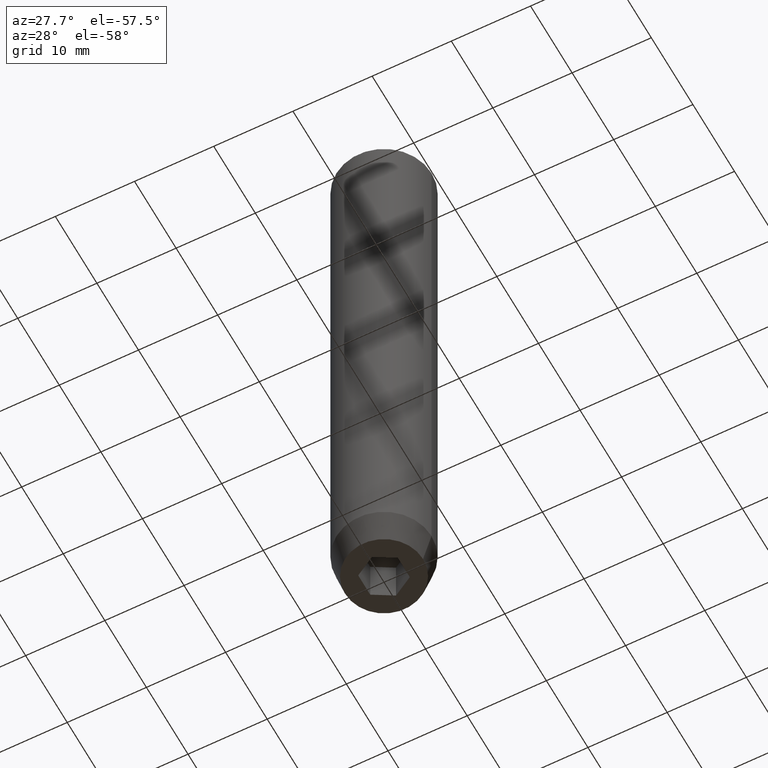
[diagram: clean part render]
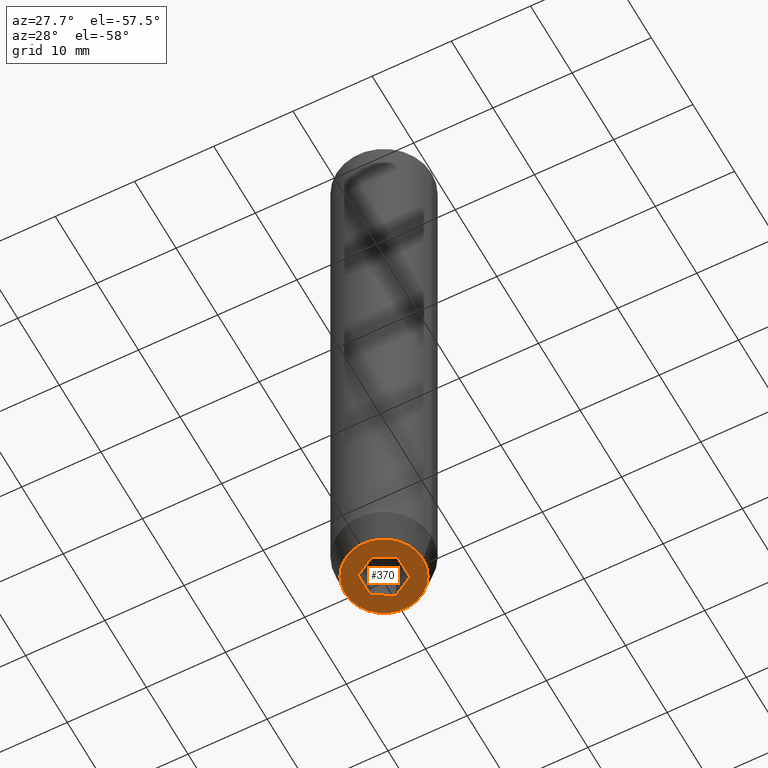
[diagram: same view with one face highlighted and labeled with its STEP entity id]
A machine part, auxiliary view. The second image highlights one B-rep face of the part: STEP entity #370.
In plain terms, the highlighted planar face has unit normal (0, 0, -1).
Its self-contained STEP definition (entity closure, byte-faithful):
#4 = ORIENTED_EDGE ( 'NONE', *, *, #563, .F. ) ;
#15 = VERTEX_POINT ( 'NONE', #477 ) ;
#18 = CARTESIAN_POINT ( 'NONE',  ( 2.499999999999999556, 0.000000000000000000, -80.00000000000001421 ) ) ;
#19 = LINE ( 'NONE', #23, #527 ) ;
#22 = DIRECTION ( 'NONE',  ( -0.8660254037844387076, -0.5000000000000001110, 0.000000000000000000 ) ) ;
#23 = CARTESIAN_POINT ( 'NONE',  ( -1.250000000000000000, 2.165063509461097269, -80.00000000000001421 ) ) ;
#26 = AXIS2_PLACEMENT_3D ( 'NONE', #350, #551, #554 ) ;
#47 = VECTOR ( 'NONE', #573, 1000.000000000000114 ) ;
#60 = VERTEX_POINT ( 'NONE', #465 ) ;
#67 = VECTOR ( 'NONE', #304, 1000.000000000000000 ) ;
#102 = FACE_OUTER_BOUND ( 'NONE', #158, .T. ) ;
#104 = ORIENTED_EDGE ( 'NONE', *, *, #632, .F. ) ;
#112 = VECTOR ( 'NONE', #356, 1000.000000000000114 ) ;
#114 = VERTEX_POINT ( 'NONE', #120 ) ;
#120 = CARTESIAN_POINT ( 'NONE',  ( -2.499999999999999556, 1.443375672974064994, -80.00000000000001421 ) ) ;
#132 = VERTEX_POINT ( 'NONE', #514 ) ;
#141 = CARTESIAN_POINT ( 'NONE',  ( -2.500000000000000444, -1.443375672974064106, -80.00000000000001421 ) ) ;
#142 = CIRCLE ( 'NONE', #398, 4.928203230275509661 ) ;
#154 = CARTESIAN_POINT ( 'NONE',  ( -1.249999999999999334, -2.165063509461096825, -80.00000000000001421 ) ) ;
#158 = EDGE_LOOP ( 'NONE', ( #216, #530 ) ) ;
#161 = CARTESIAN_POINT ( 'NONE',  ( -2.500000000000000000, 7.511572993685795156E-16, -80.00000000000001421 ) ) ;
#162 = EDGE_CURVE ( 'NONE', #15, #298, #204, .T. ) ;
#195 = DIRECTION ( 'NONE',  ( 1.000000000000000000, 0.000000000000000000, 0.000000000000000000 ) ) ;
#204 = CIRCLE ( 'NONE', #347, 4.928203230275509661 ) ;
#205 = LINE ( 'NONE', #154, #112 ) ;
#208 = VECTOR ( 'NONE', #22, 999.9999999999998863 ) ;
#209 = VERTEX_POINT ( 'NONE', #488 ) ;
#215 = CARTESIAN_POINT ( 'NONE',  ( -4.928203230275509661, 6.691594553194334567E-16, -80.00000000000001421 ) ) ;
#216 = ORIENTED_EDGE ( 'NONE', *, *, #162, .F. ) ;
#218 = LINE ( 'NONE', #576, #47 ) ;
#219 = ORIENTED_EDGE ( 'NONE', *, *, #283, .F. ) ;
#228 = VERTEX_POINT ( 'NONE', #342 ) ;
#238 = CARTESIAN_POINT ( 'NONE',  ( 0.000000000000000000, 0.000000000000000000, -80.00000000000001421 ) ) ;
#257 = DIRECTION ( 'NONE',  ( 3.004629197474318063E-16, 1.000000000000000000, 0.000000000000000000 ) ) ;
#262 = DIRECTION ( 'NONE',  ( 1.000000000000000000, 0.000000000000000000, 0.000000000000000000 ) ) ;
#264 = CARTESIAN_POINT ( 'NONE',  ( 1.249999999999999778, -2.165063509461096380, -80.00000000000001421 ) ) ;
#281 = VECTOR ( 'NONE', #257, 1000.000000000000000 ) ;
#283 = EDGE_CURVE ( 'NONE', #60, #322, #205, .T. ) ;
#298 = VERTEX_POINT ( 'NONE', #215 ) ;
#304 = DIRECTION ( 'NONE',  ( 0.000000000000000000, -1.000000000000000000, 0.000000000000000000 ) ) ;
#306 = ORIENTED_EDGE ( 'NONE', *, *, #598, .F. ) ;
#314 = EDGE_CURVE ( 'NONE', #298, #15, #142, .T. ) ;
#322 = VERTEX_POINT ( 'NONE', #141 ) ;
#342 = CARTESIAN_POINT ( 'NONE',  ( 2.499999999999999556, -1.443375672974064550, -80.00000000000001421 ) ) ;
#344 = FACE_BOUND ( 'NONE', #366, .T. ) ;
#347 = AXIS2_PLACEMENT_3D ( 'NONE', #238, #538, #195 ) ;
#350 = CARTESIAN_POINT ( 'NONE',  ( 0.000000000000000000, 4.928203230275509661, -80.00000000000001421 ) ) ;
#352 = EDGE_CURVE ( 'NONE', #114, #132, #19, .T. ) ;
#354 = EDGE_CURVE ( 'NONE', #132, #209, #218, .T. ) ;
#356 = DIRECTION ( 'NONE',  ( -0.8660254037844387076, 0.4999999999999997780, 0.000000000000000000 ) ) ;
#366 = EDGE_LOOP ( 'NONE', ( #434, #4, #219, #104, #306, #628 ) ) ;
#370 = ADVANCED_FACE ( 'NONE', ( #344, #102 ), #596, .T. ) ;
#387 = DIRECTION ( 'NONE',  ( -0.000000000000000000, -0.000000000000000000, 1.000000000000000000 ) ) ;
#398 = AXIS2_PLACEMENT_3D ( 'NONE', #436, #387, #262 ) ;
#434 = ORIENTED_EDGE ( 'NONE', *, *, #352, .F. ) ;
#436 = CARTESIAN_POINT ( 'NONE',  ( 0.000000000000000000, 0.000000000000000000, -80.00000000000001421 ) ) ;
#465 = CARTESIAN_POINT ( 'NONE',  ( 6.505213034913026604E-16, -2.886751345948127767, -80.00000000000001421 ) ) ;
#477 = CARTESIAN_POINT ( 'NONE',  ( 4.928203230275509661, 0.000000000000000000, -80.00000000000001421 ) ) ;
#488 = CARTESIAN_POINT ( 'NONE',  ( 2.499999999999999556, 1.443375672974065216, -80.00000000000001421 ) ) ;
#509 = LINE ( 'NONE', #18, #67 ) ;
#514 = CARTESIAN_POINT ( 'NONE',  ( 1.084202172485504434E-16, 2.886751345948129543, -80.00000000000001421 ) ) ;
#515 = LINE ( 'NONE', #264, #208 ) ;
#527 = VECTOR ( 'NONE', #612, 1000.000000000000227 ) ;
#530 = ORIENTED_EDGE ( 'NONE', *, *, #314, .F. ) ;
#538 = DIRECTION ( 'NONE',  ( -0.000000000000000000, -0.000000000000000000, 1.000000000000000000 ) ) ;
#545 = LINE ( 'NONE', #161, #281 ) ;
#551 = DIRECTION ( 'NONE',  ( 0.000000000000000000, 0.000000000000000000, -1.000000000000000000 ) ) ;
#554 = DIRECTION ( 'NONE',  ( -1.000000000000000000, 0.000000000000000000, -0.000000000000000000 ) ) ;
#563 = EDGE_CURVE ( 'NONE', #322, #114, #545, .T. ) ;
#573 = DIRECTION ( 'NONE',  ( 0.8660254037844385966, -0.4999999999999999445, 0.000000000000000000 ) ) ;
#576 = CARTESIAN_POINT ( 'NONE',  ( 1.250000000000000222, 2.165063509461097269, -80.00000000000001421 ) ) ;
#596 = PLANE ( 'NONE',  #26 ) ;
#598 = EDGE_CURVE ( 'NONE', #209, #228, #509, .T. ) ;
#612 = DIRECTION ( 'NONE',  ( 0.8660254037844385966, 0.4999999999999998890, 0.000000000000000000 ) ) ;
#628 = ORIENTED_EDGE ( 'NONE', *, *, #354, .F. ) ;
#632 = EDGE_CURVE ( 'NONE', #228, #60, #515, .T. ) ;